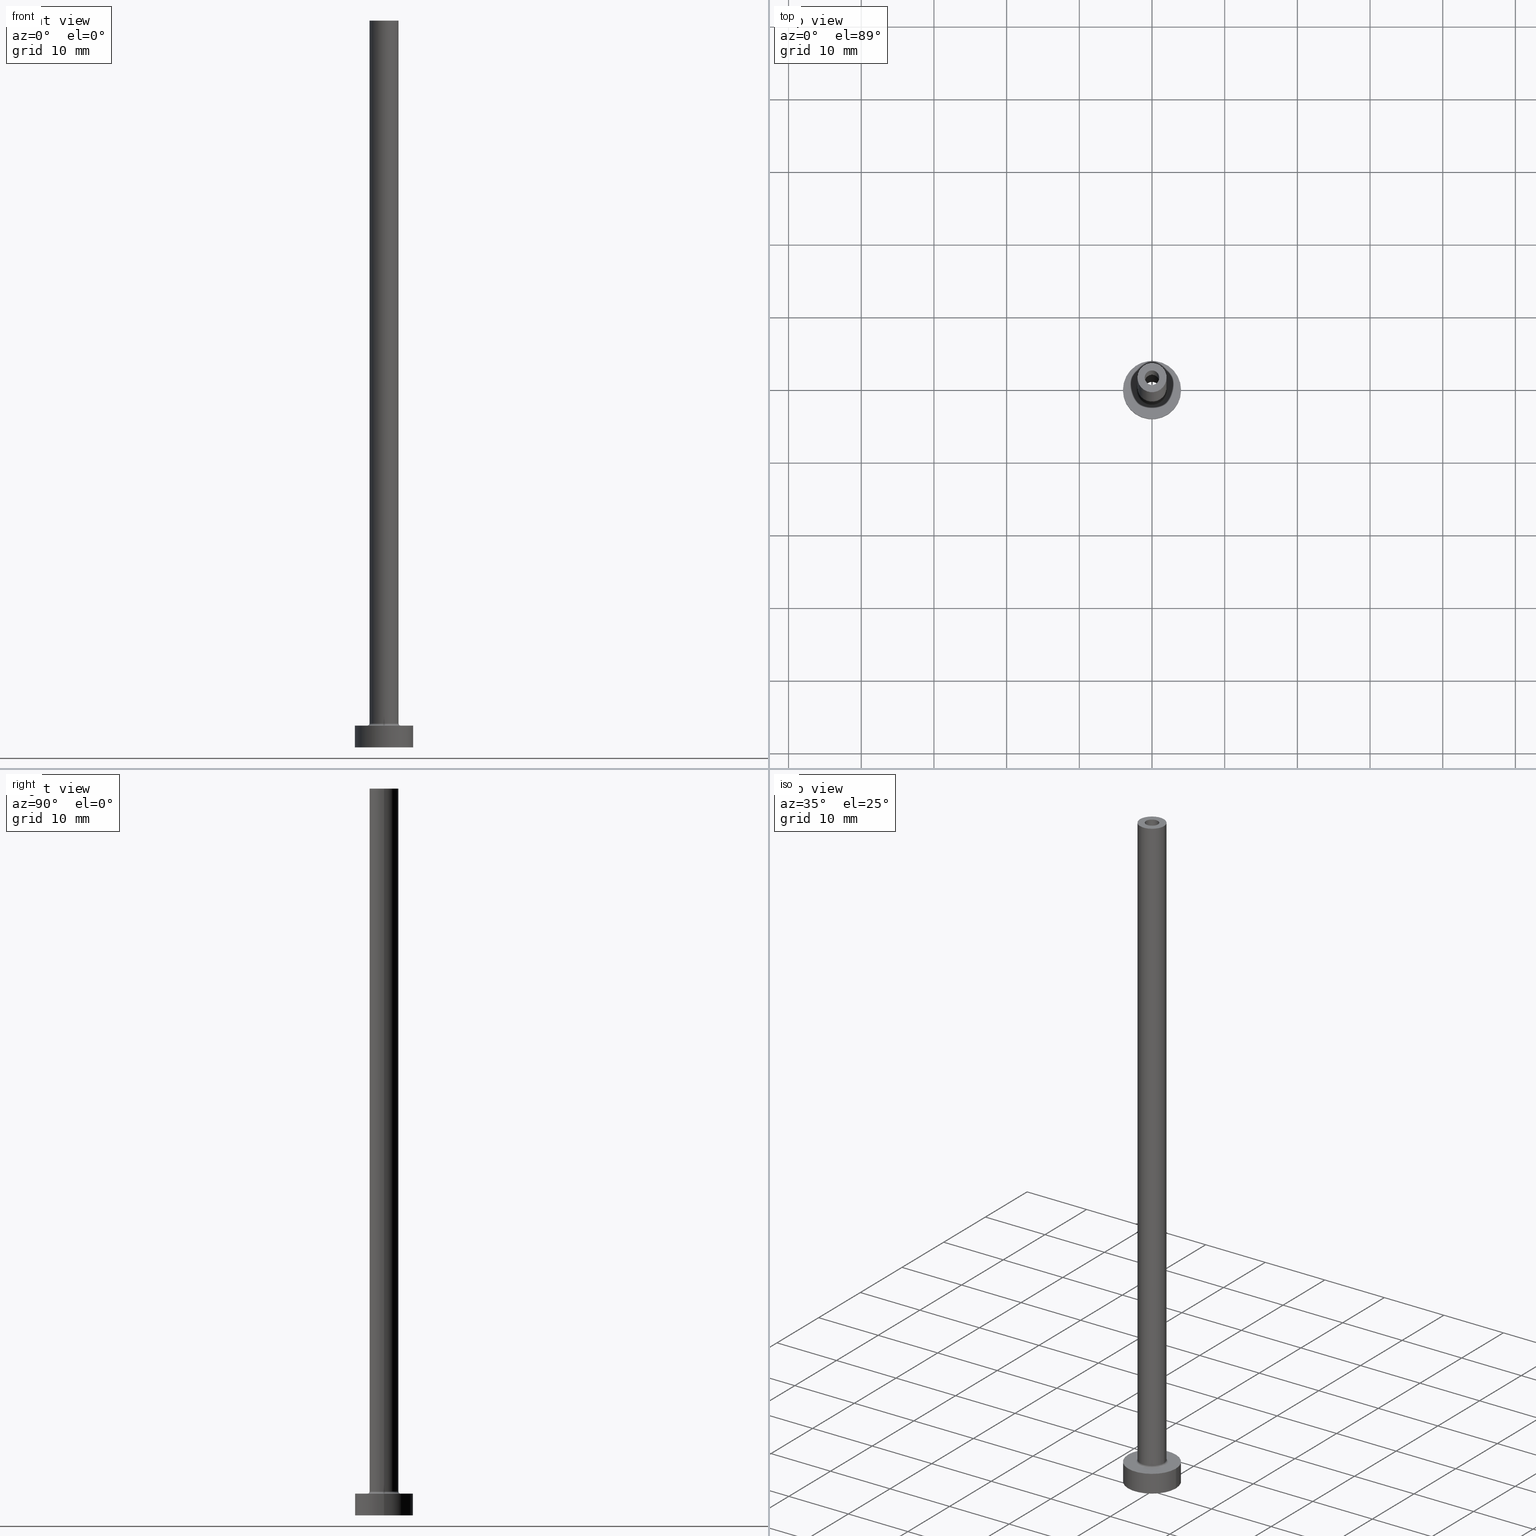
[diagram: canonical four-view strip — front | top / right | iso, engineering-drawing reading convention]
A machine part, canonical four-view strip (front | top / right | iso — engineering-drawing reading convention). The complete STEP part file that produces these views, byte-faithful:
ISO-10303-21;
HEADER;
FILE_DESCRIPTION (( 'STEP AP203' ),
    '1' );
FILE_NAME ('c3e3.STEP',
    '2023-02-13T12:51:20',
    ( '' ),
    ( '' ),
    'SwSTEP 2.0',
    'SolidWorks 2019',
    '' );
FILE_SCHEMA (( 'CONFIG_CONTROL_DESIGN' ));
ENDSEC;

DATA;
#1 = DIRECTION ( 'NONE',  ( 0.000000000000000000, 0.000000000000000000, -1.000000000000000000 ) ) ;
#2 = ORIENTED_EDGE ( 'NONE', *, *, #427, .T. ) ;
#3 = CARTESIAN_POINT ( 'NONE',  ( 0.000000000000000000, 0.000000000000000000, 3.000000000000000000 ) ) ;
#4 = DIRECTION ( 'NONE',  ( -0.000000000000000000, -0.000000000000000000, -1.000000000000000000 ) ) ;
#5 = TOROIDAL_SURFACE ( 'NONE', #358, 2.299999999999999822, 0.2999999999999999889 ) ;
#6 = CARTESIAN_POINT ( 'NONE',  ( -4.000000000000000000, 0.000000000000000000, 0.000000000000000000 ) ) ;
#7 = EDGE_CURVE ( 'NONE', #207, #121, #343, .T. ) ;
#8 = ORIENTED_EDGE ( 'NONE', *, *, #230, .T. ) ;
#9 = CARTESIAN_POINT ( 'NONE',  ( 0.000000000000000000, 0.000000000000000000, 3.299999999999997158 ) ) ;
#10 = EDGE_CURVE ( 'NONE', #211, #157, #228, .T. ) ;
#11 = CC_DESIGN_DATE_AND_TIME_ASSIGNMENT ( #301, #264, ( #240 ) ) ;
#12 = APPROVAL_PERSON_ORGANIZATION ( #194, #149, #426 ) ;
#13 = EDGE_LOOP ( 'NONE', ( #83, #331, #319, #382 ) ) ;
#14 = PRODUCT_DEFINITION_SHAPE ( 'NONE', 'NONE',  #240 ) ;
#15 = CARTESIAN_POINT ( 'NONE',  ( 1.149999999999999911, 1.408343819019456028E-16, 0.000000000000000000 ) ) ;
#16 = EDGE_LOOP ( 'NONE', ( #425, #40, #8, #134 ) ) ;
#17 = DIRECTION ( 'NONE',  ( 1.000000000000000000, 0.000000000000000000, 0.000000000000000000 ) ) ;
#18 = DIRECTION ( 'NONE',  ( 0.000000000000000000, 0.000000000000000000, 1.000000000000000000 ) ) ;
#19 = CIRCLE ( 'NONE', #291, 1.000000000000000000 ) ;
#20 = CARTESIAN_POINT ( 'NONE',  ( 0.000000000000000000, 0.000000000000000000, 3.299999999999997158 ) ) ;
#21 = DIRECTION ( 'NONE',  ( 0.000000000000000000, 0.000000000000000000, -1.000000000000000000 ) ) ;
#22 = ORIENTED_EDGE ( 'NONE', *, *, #142, .T. ) ;
#23 = AXIS2_PLACEMENT_3D ( 'NONE', #163, #18, #156 ) ;
#24 = LOCAL_TIME ( 13, 51, 20.00000000000000000, #198 ) ;
#25 = DIRECTION ( 'NONE',  ( 0.000000000000000000, 0.000000000000000000, 1.000000000000000000 ) ) ;
#26 = ORIENTED_EDGE ( 'NONE', *, *, #230, .F. ) ;
#27 = CARTESIAN_POINT ( 'NONE',  ( 0.000000000000000000, 0.000000000000000000, 100.0000000000000000 ) ) ;
#28 = DATE_AND_TIME ( #57, #144 ) ;
#29 = CARTESIAN_POINT ( 'NONE',  ( 0.000000000000000000, 0.000000000000000000, 100.0000000000000000 ) ) ;
#30 = DIRECTION ( 'NONE',  ( 0.000000000000000000, 0.000000000000000000, 1.000000000000000000 ) ) ;
#31 = DIRECTION ( 'NONE',  ( 0.000000000000000000, 0.000000000000000000, 1.000000000000000000 ) ) ;
#32 = FACE_OUTER_BOUND ( 'NONE', #130, .T. ) ;
#33 = DIRECTION ( 'NONE',  ( 1.000000000000000000, 0.000000000000000000, -0.000000000000000000 ) ) ;
#34 = DIRECTION ( 'NONE',  ( 0.000000000000000000, 0.000000000000000000, 1.000000000000000000 ) ) ;
#35 = APPLICATION_PROTOCOL_DEFINITION ( 'international standard', 'config_control_design', 1994, #278 ) ;
#36 = ADVANCED_FACE ( 'NONE', ( #260 ), #227, .F. ) ;
#37 = VERTEX_POINT ( 'NONE', #189 ) ;
#38 = VECTOR ( 'NONE', #200, 1000.000000000000000 ) ;
#39 = CC_DESIGN_APPROVAL ( #431, ( #445 ) ) ;
#40 = ORIENTED_EDGE ( 'NONE', *, *, #329, .T. ) ;
#41 = PRODUCT ( 'c3e3', 'c3e3', '', ( #389 ) ) ;
#42 = ADVANCED_FACE ( 'NONE', ( #447, #119 ), #371, .F. ) ;
#43 = APPROVAL_DATE_TIME ( #116, #431 ) ;
#44 = EDGE_LOOP ( 'NONE', ( #324, #380 ) ) ;
#45 = CIRCLE ( 'NONE', #320, 4.000000000000000000 ) ;
#46 = LOCAL_TIME ( 13, 51, 20.00000000000000000, #223 ) ;
#47 = DIRECTION ( 'NONE',  ( -0.000000000000000000, -0.000000000000000000, -1.000000000000000000 ) ) ;
#48 = EDGE_CURVE ( 'NONE', #417, #449, #312, .T. ) ;
#49 = LINE ( 'NONE', #271, #307 ) ;
#50 = DIRECTION ( 'NONE',  ( 0.000000000000000000, 0.000000000000000000, -1.000000000000000000 ) ) ;
#51 = CYLINDRICAL_SURFACE ( 'NONE', #85, 4.000000000000000000 ) ;
#52 = VERTEX_POINT ( 'NONE', #88 ) ;
#53 = CARTESIAN_POINT ( 'NONE',  ( 4.000000000000000000, 4.898587196589412829E-16, 0.000000000000000000 ) ) ;
#54 = VERTEX_POINT ( 'NONE', #53 ) ;
#55 = SECURITY_CLASSIFICATION ( '', '', #79 ) ;
#56 = CARTESIAN_POINT ( 'NONE',  ( -2.000000000000000000, 0.000000000000000000, 100.0000000000000000 ) ) ;
#57 = CALENDAR_DATE ( 2023, 13, 2 ) ;
#58 = CARTESIAN_POINT ( 'NONE',  ( 0.000000000000000000, 0.000000000000000000, 0.000000000000000000 ) ) ;
#59 = ADVANCED_FACE ( 'NONE', ( #209 ), #101, .T. ) ;
#60 = DIRECTION ( 'NONE',  ( -1.000000000000000000, 1.224646799147353207E-16, 0.000000000000000000 ) ) ;
#61 = EDGE_LOOP ( 'NONE', ( #190, #277, #239, #160 ) ) ;
#62 = DIRECTION ( 'NONE',  ( 1.000000000000000000, 0.000000000000000000, 0.000000000000000000 ) ) ;
#63 = ORIENTED_EDGE ( 'NONE', *, *, #180, .F. ) ;
#64 = APPROVAL_ROLE ( '' ) ;
#65 = LINE ( 'NONE', #354, #38 ) ;
#66 = AXIS2_PLACEMENT_3D ( 'NONE', #454, #138, #124 ) ;
#67 = VECTOR ( 'NONE', #242, 1000.000000000000000 ) ;
#68 = ADVANCED_FACE ( 'NONE', ( #254 ), #5, .F. ) ;
#69 = CYLINDRICAL_SURFACE ( 'NONE', #414, 2.000000000000000000 ) ;
#70 = ORIENTED_EDGE ( 'NONE', *, *, #446, .F. ) ;
#71 = CYLINDRICAL_SURFACE ( 'NONE', #177, 1.149999999999999911 ) ;
#72 =( LENGTH_UNIT ( ) NAMED_UNIT ( * ) SI_UNIT ( .MILLI., .METRE. ) );
#73 = DIRECTION ( 'NONE',  ( 1.224646799147353207E-16, 1.000000000000000000, -0.000000000000000000 ) ) ;
#74 = CARTESIAN_POINT ( 'NONE',  ( 0.000000000000000000, 0.000000000000000000, 0.000000000000000000 ) ) ;
#75 = CARTESIAN_POINT ( 'NONE',  ( -4.000000000000000000, 0.000000000000000000, 3.000000000000000000 ) ) ;
#76 = EDGE_CURVE ( 'NONE', #420, #448, #19, .T. ) ;
#77 = AXIS2_PLACEMENT_3D ( 'NONE', #375, #197, #350 ) ;
#78 = DIRECTION ( 'NONE',  ( 1.000000000000000000, 0.000000000000000000, 0.000000000000000000 ) ) ;
#79 = SECURITY_CLASSIFICATION_LEVEL ( 'unclassified' ) ;
#80 = CALENDAR_DATE ( 2023, 13, 2 ) ;
#81 = MANIFOLD_SOLID_BREP ( 'Odebrat vysunut�m4', #289 ) ;
#82 = EDGE_LOOP ( 'NONE', ( #22, #345 ) ) ;
#83 = ORIENTED_EDGE ( 'NONE', *, *, #314, .F. ) ;
#84 = ORIENTED_EDGE ( 'NONE', *, *, #10, .F. ) ;
#85 = AXIS2_PLACEMENT_3D ( 'NONE', #313, #206, #381 ) ;
#86 = CC_DESIGN_PERSON_AND_ORGANIZATION_ASSIGNMENT ( #327, #279, ( #55 ) ) ;
#87 = EDGE_LOOP ( 'NONE', ( #252, #332 ) ) ;
#88 = CARTESIAN_POINT ( 'NONE',  ( -4.000000000000000000, 0.000000000000000000, 3.000000000000000000 ) ) ;
#89 = ORIENTED_EDGE ( 'NONE', *, *, #118, .F. ) ;
#90 = FACE_OUTER_BOUND ( 'NONE', #317, .T. ) ;
#91 = ADVANCED_FACE ( 'NONE', ( #292, #315 ), #391, .T. ) ;
#92 = SHAPE_DEFINITION_REPRESENTATION ( #14, #201 ) ;
#93 = APPROVAL_PERSON_ORGANIZATION ( #442, #431, #441 ) ;
#94 = CARTESIAN_POINT ( 'NONE',  ( 0.000000000000000000, 0.000000000000000000, 3.000000000000000000 ) ) ;
#95 = DIRECTION ( 'NONE',  ( 1.000000000000000000, 0.000000000000000000, 0.000000000000000000 ) ) ;
#96 = CARTESIAN_POINT ( 'NONE',  ( 2.299999999999999822, 0.000000000000000000, 3.299999999999997158 ) ) ;
#97 = DIRECTION ( 'NONE',  ( 1.000000000000000000, 0.000000000000000000, 0.000000000000000000 ) ) ;
#98 = APPLICATION_PROTOCOL_DEFINITION ( 'international standard', 'config_control_design', 1994, #159 ) ;
#99 = CARTESIAN_POINT ( 'NONE',  ( 0.000000000000000000, 0.000000000000000000, 68.25269119345811930 ) ) ;
#100 = DATE_AND_TIME ( #132, #436 ) ;
#101 = CYLINDRICAL_SURFACE ( 'NONE', #434, 2.000000000000000000 ) ;
#102 = DIRECTION ( 'NONE',  ( 1.000000000000000000, 0.000000000000000000, 0.000000000000000000 ) ) ;
#103 = AXIS2_PLACEMENT_3D ( 'NONE', #365, #419, #17 ) ;
#104 = VECTOR ( 'NONE', #410, 1000.000000000000000 ) ;
#105 = DIRECTION ( 'NONE',  ( -1.000000000000000000, 0.000000000000000000, 0.000000000000000000 ) ) ;
#106 = DIRECTION ( 'NONE',  ( 0.000000000000000000, 0.000000000000000000, -1.000000000000000000 ) ) ;
#107 = ORIENTED_EDGE ( 'NONE', *, *, #344, .F. ) ;
#108 = CARTESIAN_POINT ( 'NONE',  ( 1.149999999999999911, 1.408343819019456028E-16, 68.25269119345811930 ) ) ;
#109 = CARTESIAN_POINT ( 'NONE',  ( 0.000000000000000000, 0.000000000000000000, 65.00000000000000000 ) ) ;
#110 = EDGE_CURVE ( 'NONE', #121, #207, #115, .T. ) ;
#111 = CIRCLE ( 'NONE', #367, 2.000000000000000000 ) ;
#112 = AXIS2_PLACEMENT_3D ( 'NONE', #74, #218, #265 ) ;
#113 = PERSON_AND_ORGANIZATION ( #369, #205 ) ;
#114 = AXIS2_PLACEMENT_3D ( 'NONE', #231, #122, #276 ) ;
#115 = CIRCLE ( 'NONE', #444, 2.000000000000000000 ) ;
#116 = DATE_AND_TIME ( #305, #129 ) ;
#117 = AXIS2_PLACEMENT_3D ( 'NONE', #203, #285, #280 ) ;
#118 = EDGE_CURVE ( 'NONE', #37, #370, #424, .T. ) ;
#119 = FACE_OUTER_BOUND ( 'NONE', #152, .T. ) ;
#120 = AXIS2_PLACEMENT_3D ( 'NONE', #253, #330, #397 ) ;
#121 = VERTEX_POINT ( 'NONE', #383 ) ;
#122 = DIRECTION ( 'NONE',  ( 0.000000000000000000, 0.000000000000000000, 1.000000000000000000 ) ) ;
#123 = ORIENTED_EDGE ( 'NONE', *, *, #7, .F. ) ;
#124 = DIRECTION ( 'NONE',  ( 1.000000000000000000, 0.000000000000000000, 0.000000000000000000 ) ) ;
#125 = CARTESIAN_POINT ( 'NONE',  ( 1.149999999999999911, 1.408343819019456028E-16, 65.00000000000000000 ) ) ;
#126 = DIRECTION ( 'NONE',  ( 0.000000000000000000, 0.000000000000000000, -1.000000000000000000 ) ) ;
#127 = CARTESIAN_POINT ( 'NONE',  ( 2.299999999999999822, 0.000000000000000000, 2.999999999999998668 ) ) ;
#128 = COORDINATED_UNIVERSAL_TIME_OFFSET ( 1, 0, .AHEAD. ) ;
#129 = LOCAL_TIME ( 13, 51, 20.00000000000000000, #303 ) ;
#130 = EDGE_LOOP ( 'NONE', ( #310, #155, #456, #308 ) ) ;
#131 = DIRECTION ( 'NONE',  ( -0.000000000000000000, -0.000000000000000000, -1.000000000000000000 ) ) ;
#132 = CALENDAR_DATE ( 2023, 13, 2 ) ;
#133 = EDGE_CURVE ( 'NONE', #333, #364, #282, .T. ) ;
#134 = ORIENTED_EDGE ( 'NONE', *, *, #298, .F. ) ;
#135 = DIRECTION ( 'NONE',  ( -0.000000000000000000, -0.000000000000000000, -1.000000000000000000 ) ) ;
#136 = CARTESIAN_POINT ( 'NONE',  ( 2.000000000000000000, 2.449293598294705921E-16, 3.299999999999997158 ) ) ;
#137 = AXIS2_PLACEMENT_3D ( 'NONE', #355, #31, #172 ) ;
#138 = DIRECTION ( 'NONE',  ( -0.000000000000000000, -0.000000000000000000, -1.000000000000000000 ) ) ;
#139 = DIRECTION ( 'NONE',  ( 1.000000000000000000, 0.000000000000000000, 0.000000000000000000 ) ) ;
#140 = EDGE_LOOP ( 'NONE', ( #366, #269 ) ) ;
#141 = PERSON_AND_ORGANIZATION_ROLE ( 'design_owner' ) ;
#142 = EDGE_CURVE ( 'NONE', #370, #37, #151, .T. ) ;
#143 = DATE_AND_TIME ( #146, #24 ) ;
#144 = LOCAL_TIME ( 13, 51, 20.00000000000000000, #128 ) ;
#145 = CC_DESIGN_DATE_AND_TIME_ASSIGNMENT ( #28, #161, ( #55 ) ) ;
#146 = CALENDAR_DATE ( 2023, 13, 2 ) ;
#147 = CC_DESIGN_SECURITY_CLASSIFICATION ( #55, ( #445 ) ) ;
#148 = ORIENTED_EDGE ( 'NONE', *, *, #298, .T. ) ;
#149 = APPROVAL ( #455, 'NEUR�EN�' ) ;
#150 = FACE_OUTER_BOUND ( 'NONE', #255, .T. ) ;
#151 = CIRCLE ( 'NONE', #23, 1.000000000000000000 ) ;
#152 = EDGE_LOOP ( 'NONE', ( #362, #70 ) ) ;
#153 = APPROVAL_PERSON_ORGANIZATION ( #241, #219, #64 ) ;
#154 = ADVANCED_FACE ( 'NONE', ( #150 ), #51, .T. ) ;
#155 = ORIENTED_EDGE ( 'NONE', *, *, #363, .T. ) ;
#156 = DIRECTION ( 'NONE',  ( 1.000000000000000000, 0.000000000000000000, 0.000000000000000000 ) ) ;
#157 = VERTEX_POINT ( 'NONE', #127 ) ;
#158 = LINE ( 'NONE', #458, #267 ) ;
#159 = APPLICATION_CONTEXT ( 'configuration controlled 3d designs of mechanical parts and assemblies' ) ;
#160 = ORIENTED_EDGE ( 'NONE', *, *, #427, .F. ) ;
#161 = DATE_TIME_ROLE ( 'classification_date' ) ;
#162 = DIRECTION ( 'NONE',  ( 0.000000000000000000, 0.000000000000000000, 1.000000000000000000 ) ) ;
#163 = CARTESIAN_POINT ( 'NONE',  ( 0.000000000000000000, 0.000000000000000000, 65.00000000000000000 ) ) ;
#164 = CIRCLE ( 'NONE', #112, 4.000000000000000000 ) ;
#165 = DIRECTION ( 'NONE',  ( -1.000000000000000000, 0.000000000000000000, 0.000000000000000000 ) ) ;
#166 = FACE_OUTER_BOUND ( 'NONE', #13, .T. ) ;
#167 = APPROVAL_DATE_TIME ( #100, #149 ) ;
#168 = CARTESIAN_POINT ( 'NONE',  ( -2.299999999999999822, 2.816687638038912056E-16, 3.299999999999997158 ) ) ;
#169 = DIRECTION ( 'NONE',  ( 0.000000000000000000, 0.000000000000000000, 1.000000000000000000 ) ) ;
#170 = EDGE_LOOP ( 'NONE', ( #263, #123, #148, #334 ) ) ;
#171 = DIRECTION ( 'NONE',  ( -1.000000000000000000, 0.000000000000000000, 0.000000000000000000 ) ) ;
#172 = DIRECTION ( 'NONE',  ( 1.000000000000000000, 0.000000000000000000, 0.000000000000000000 ) ) ;
#173 = ORIENTED_EDGE ( 'NONE', *, *, #110, .T. ) ;
#174 = DIRECTION ( 'NONE',  ( -1.000000000000000000, 0.000000000000000000, 0.000000000000000000 ) ) ;
#175 = DIRECTION ( 'NONE',  ( 1.000000000000000000, 0.000000000000000000, 0.000000000000000000 ) ) ;
#176 = EDGE_CURVE ( 'NONE', #364, #333, #401, .T. ) ;
#177 = AXIS2_PLACEMENT_3D ( 'NONE', #208, #106, #174 ) ;
#178 = DIRECTION ( 'NONE',  ( 0.000000000000000000, 0.000000000000000000, 1.000000000000000000 ) ) ;
#179 = APPROVAL_DATE_TIME ( #143, #219 ) ;
#180 = EDGE_CURVE ( 'NONE', #157, #211, #185, .T. ) ;
#181 = AXIS2_PLACEMENT_3D ( 'NONE', #286, #429, #97 ) ;
#182 = CIRCLE ( 'NONE', #402, 1.000000000000000000 ) ;
#183 = PERSON_AND_ORGANIZATION_ROLE ( 'creator' ) ;
#184 = PERSON_AND_ORGANIZATION ( #369, #205 ) ;
#185 = CIRCLE ( 'NONE', #66, 2.299999999999999822 ) ;
#186 = AXIS2_PLACEMENT_3D ( 'NONE', #261, #300, #443 ) ;
#187 = VERTEX_POINT ( 'NONE', #346 ) ;
#188 = ORIENTED_EDGE ( 'NONE', *, *, #306, .F. ) ;
#189 = CARTESIAN_POINT ( 'NONE',  ( 1.000000000000000000, 1.224646799147353207E-16, 65.00000000000000000 ) ) ;
#190 = ORIENTED_EDGE ( 'NONE', *, *, #384, .T. ) ;
#191 = EDGE_LOOP ( 'NONE', ( #387, #316 ) ) ;
#192 = CARTESIAN_POINT ( 'NONE',  ( -1.149999999999999911, 0.000000000000000000, 0.000000000000000000 ) ) ;
#193 = CYLINDRICAL_SURFACE ( 'NONE', #258, 1.149999999999999911 ) ;
#194 = PERSON_AND_ORGANIZATION ( #369, #205 ) ;
#195 = ADVANCED_FACE ( 'NONE', ( #234 ), #461, .F. ) ;
#196 = CARTESIAN_POINT ( 'NONE',  ( 0.000000000000000000, 0.000000000000000000, 100.0000000000000000 ) ) ;
#197 = DIRECTION ( 'NONE',  ( -0.000000000000000000, -0.000000000000000000, -1.000000000000000000 ) ) ;
#198 = COORDINATED_UNIVERSAL_TIME_OFFSET ( 1, 0, .AHEAD. ) ;
#199 = ORIENTED_EDGE ( 'NONE', *, *, #48, .T. ) ;
#200 = DIRECTION ( 'NONE',  ( 0.000000000000000000, 0.000000000000000000, -1.000000000000000000 ) ) ;
#201 = ADVANCED_BREP_SHAPE_REPRESENTATION ( 'c3e3', ( #81, #120 ), #415 ) ;
#202 = ORIENTED_EDGE ( 'NONE', *, *, #309, .F. ) ;
#203 = CARTESIAN_POINT ( 'NONE',  ( 0.000000000000000000, 0.000000000000000000, 65.00000000000000000 ) ) ;
#204 = CIRCLE ( 'NONE', #273, 2.000000000000000000 ) ;
#205 = ORGANIZATION ( 'NEUR�EN�', 'NEUR�EN�', '' ) ;
#206 = DIRECTION ( 'NONE',  ( -0.000000000000000000, -0.000000000000000000, -1.000000000000000000 ) ) ;
#207 = VERTEX_POINT ( 'NONE', #56 ) ;
#208 = CARTESIAN_POINT ( 'NONE',  ( 0.000000000000000000, 0.000000000000000000, 68.25269119345811930 ) ) ;
#209 = FACE_OUTER_BOUND ( 'NONE', #16, .T. ) ;
#210 = DIRECTION ( 'NONE',  ( 0.000000000000000000, -1.000000000000000000, 0.000000000000000000 ) ) ;
#211 = VERTEX_POINT ( 'NONE', #437 ) ;
#212 = FACE_OUTER_BOUND ( 'NONE', #421, .T. ) ;
#213 = UNCERTAINTY_MEASURE_WITH_UNIT (LENGTH_MEASURE( 1.000000000000000082E-05 ), #72, 'distance_accuracy_value', 'NONE');
#214 = AXIS2_PLACEMENT_3D ( 'NONE', #168, #73, #60 ) ;
#215 = ORIENTED_EDGE ( 'NONE', *, *, #7, .T. ) ;
#216 = PERSON_AND_ORGANIZATION ( #369, #205 ) ;
#217 = ADVANCED_FACE ( 'NONE', ( #90 ), #193, .F. ) ;
#218 = DIRECTION ( 'NONE',  ( 0.000000000000000000, 0.000000000000000000, 1.000000000000000000 ) ) ;
#219 = APPROVAL ( #385, 'NEUR�EN�' ) ;
#220 = LINE ( 'NONE', #360, #104 ) ;
#221 = AXIS2_PLACEMENT_3D ( 'NONE', #432, #293, #423 ) ;
#222 = VECTOR ( 'NONE', #396, 1000.000000000000000 ) ;
#223 = COORDINATED_UNIVERSAL_TIME_OFFSET ( 1, 0, .AHEAD. ) ;
#224 = CARTESIAN_POINT ( 'NONE',  ( 1.000000000000000000, 1.224646799147353207E-16, 100.0000000000000000 ) ) ;
#225 = EDGE_CURVE ( 'NONE', #52, #237, #45, .T. ) ;
#226 = ORIENTED_EDGE ( 'NONE', *, *, #363, .F. ) ;
#227 = CYLINDRICAL_SURFACE ( 'NONE', #372, 1.000000000000000000 ) ;
#228 = CIRCLE ( 'NONE', #406, 2.299999999999999822 ) ;
#229 = VECTOR ( 'NONE', #47, 1000.000000000000000 ) ;
#230 = EDGE_CURVE ( 'NONE', #376, #187, #111, .T. ) ;
#231 = CARTESIAN_POINT ( 'NONE',  ( 0.000000000000000000, 0.000000000000000000, 0.000000000000000000 ) ) ;
#232 = CARTESIAN_POINT ( 'NONE',  ( 0.000000000000000000, 0.000000000000000000, 100.0000000000000000 ) ) ;
#233 = CC_DESIGN_PERSON_AND_ORGANIZATION_ASSIGNMENT ( #216, #183, ( #240 ) ) ;
#234 = FACE_OUTER_BOUND ( 'NONE', #422, .T. ) ;
#235 = DIRECTION ( 'NONE',  ( 0.000000000000000000, 0.000000000000000000, 1.000000000000000000 ) ) ;
#236 = CARTESIAN_POINT ( 'NONE',  ( -1.149999999999999911, 0.000000000000000000, 65.00000000000000000 ) ) ;
#237 = VERTEX_POINT ( 'NONE', #392 ) ;
#238 = DIRECTION ( 'NONE',  ( 1.000000000000000000, 0.000000000000000000, 0.000000000000000000 ) ) ;
#239 = ORIENTED_EDGE ( 'NONE', *, *, #142, .F. ) ;
#240 = PRODUCT_DEFINITION ( 'NEZN�M�', '', #445, #251 ) ;
#241 = PERSON_AND_ORGANIZATION ( #369, #205 ) ;
#242 = DIRECTION ( 'NONE',  ( 0.000000000000000000, 0.000000000000000000, -1.000000000000000000 ) ) ;
#243 = CARTESIAN_POINT ( 'NONE',  ( 0.000000000000000000, 0.000000000000000000, 100.0000000000000000 ) ) ;
#244 = DIRECTION ( 'NONE',  ( 0.000000000000000000, 0.000000000000000000, 1.000000000000000000 ) ) ;
#245 = ORIENTED_EDGE ( 'NONE', *, *, #290, .F. ) ;
#246 = DIRECTION ( 'NONE',  ( 1.000000000000000000, 0.000000000000000000, 0.000000000000000000 ) ) ;
#247 = CARTESIAN_POINT ( 'NONE',  ( 0.000000000000000000, 0.000000000000000000, 3.299999999999997158 ) ) ;
#248 = CARTESIAN_POINT ( 'NONE',  ( 0.000000000000000000, 0.000000000000000000, 100.0000000000000000 ) ) ;
#249 = CC_DESIGN_APPROVAL ( #219, ( #240 ) ) ;
#250 = ADVANCED_FACE ( 'NONE', ( #348 ), #69, .T. ) ;
#251 = DESIGN_CONTEXT ( 'detailed design', #159, 'design' ) ;
#252 = ORIENTED_EDGE ( 'NONE', *, *, #180, .T. ) ;
#253 = CARTESIAN_POINT ( 'NONE',  ( 0.000000000000000000, 0.000000000000000000, 0.000000000000000000 ) ) ;
#254 = FACE_OUTER_BOUND ( 'NONE', #373, .T. ) ;
#255 = EDGE_LOOP ( 'NONE', ( #107, #430, #418, #440 ) ) ;
#256 = DIRECTION ( 'NONE',  ( 0.000000000000000000, 0.000000000000000000, 1.000000000000000000 ) ) ;
#257 = LINE ( 'NONE', #108, #67 ) ;
#258 = AXIS2_PLACEMENT_3D ( 'NONE', #99, #21, #283 ) ;
#259 = AXIS2_PLACEMENT_3D ( 'NONE', #109, #256, #400 ) ;
#260 = FACE_OUTER_BOUND ( 'NONE', #61, .T. ) ;
#261 = CARTESIAN_POINT ( 'NONE',  ( 0.000000000000000000, 0.000000000000000000, 3.000000000000000000 ) ) ;
#262 = PERSON_AND_ORGANIZATION_ROLE ( 'design_supplier' ) ;
#263 = ORIENTED_EDGE ( 'NONE', *, *, #329, .F. ) ;
#264 = DATE_TIME_ROLE ( 'creation_date' ) ;
#265 = DIRECTION ( 'NONE',  ( 1.000000000000000000, 0.000000000000000000, 0.000000000000000000 ) ) ;
#266 = AXIS2_PLACEMENT_3D ( 'NONE', #435, #395, #281 ) ;
#267 = VECTOR ( 'NONE', #405, 1000.000000000000000 ) ;
#268 = EDGE_CURVE ( 'NONE', #420, #37, #65, .T. ) ;
#269 = ORIENTED_EDGE ( 'NONE', *, *, #48, .F. ) ;
#270 = DIRECTION ( 'NONE',  ( 0.000000000000000000, 0.000000000000000000, -1.000000000000000000 ) ) ;
#271 = CARTESIAN_POINT ( 'NONE',  ( -1.000000000000000000, 0.000000000000000000, 100.0000000000000000 ) ) ;
#272 = ADVANCED_FACE ( 'NONE', ( #166 ), #326, .T. ) ;
#273 = AXIS2_PLACEMENT_3D ( 'NONE', #336, #235, #78 ) ;
#274 = AXIS2_PLACEMENT_3D ( 'NONE', #9, #34, #175 ) ;
#275 = EDGE_LOOP ( 'NONE', ( #328, #359 ) ) ;
#276 = DIRECTION ( 'NONE',  ( 1.000000000000000000, 0.000000000000000000, -0.000000000000000000 ) ) ;
#277 = ORIENTED_EDGE ( 'NONE', *, *, #268, .T. ) ;
#278 = APPLICATION_CONTEXT ( 'configuration controlled 3d designs of mechanical parts and assemblies' ) ;
#279 = PERSON_AND_ORGANIZATION_ROLE ( 'classification_officer' ) ;
#280 = DIRECTION ( 'NONE',  ( 1.000000000000000000, 0.000000000000000000, 0.000000000000000000 ) ) ;
#281 = DIRECTION ( 'NONE',  ( 1.000000000000000000, 0.000000000000000000, -0.000000000000000000 ) ) ;
#282 = CIRCLE ( 'NONE', #77, 1.149999999999999911 ) ;
#283 = DIRECTION ( 'NONE',  ( -1.000000000000000000, 0.000000000000000000, 0.000000000000000000 ) ) ;
#284 = CIRCLE ( 'NONE', #214, 0.2999999999999999334 ) ;
#285 = DIRECTION ( 'NONE',  ( 0.000000000000000000, 0.000000000000000000, 1.000000000000000000 ) ) ;
#286 = CARTESIAN_POINT ( 'NONE',  ( 0.000000000000000000, 0.000000000000000000, 65.00000000000000000 ) ) ;
#287 = PERSON_AND_ORGANIZATION ( #369, #205 ) ;
#288 = FACE_OUTER_BOUND ( 'NONE', #403, .T. ) ;
#289 = CLOSED_SHELL ( 'NONE', ( #36, #412, #68, #59, #154, #272, #91, #42, #250, #399, #338, #217, #439, #195 ) ) ;
#290 = EDGE_CURVE ( 'NONE', #187, #376, #204, .T. ) ;
#291 = AXIS2_PLACEMENT_3D ( 'NONE', #29, #169, #139 ) ;
#292 = FACE_BOUND ( 'NONE', #87, .T. ) ;
#293 = DIRECTION ( 'NONE',  ( 0.000000000000000000, 0.000000000000000000, -1.000000000000000000 ) ) ;
#294 = AXIS2_PLACEMENT_3D ( 'NONE', #3, #135, #105 ) ;
#295 = AXIS2_PLACEMENT_3D ( 'NONE', #248, #162, #33 ) ;
#296 = LINE ( 'NONE', #438, #222 ) ;
#297 = LINE ( 'NONE', #459, #451 ) ;
#298 = EDGE_CURVE ( 'NONE', #207, #187, #296, .T. ) ;
#299 = DIRECTION ( 'NONE',  ( 1.000000000000000000, 0.000000000000000000, 0.000000000000000000 ) ) ;
#300 = DIRECTION ( 'NONE',  ( 0.000000000000000000, 0.000000000000000000, 1.000000000000000000 ) ) ;
#301 = DATE_AND_TIME ( #80, #46 ) ;
#302 = CC_DESIGN_APPROVAL ( #149, ( #55 ) ) ;
#303 = COORDINATED_UNIVERSAL_TIME_OFFSET ( 1, 0, .AHEAD. ) ;
#304 = FACE_OUTER_BOUND ( 'NONE', #140, .T. ) ;
#305 = CALENDAR_DATE ( 2023, 13, 2 ) ;
#306 = EDGE_CURVE ( 'NONE', #187, #211, #284, .T. ) ;
#307 = VECTOR ( 'NONE', #270, 1000.000000000000000 ) ;
#308 = ORIENTED_EDGE ( 'NONE', *, *, #450, .F. ) ;
#309 = EDGE_CURVE ( 'NONE', #376, #157, #460, .T. ) ;
#310 = ORIENTED_EDGE ( 'NONE', *, *, #374, .T. ) ;
#311 = CC_DESIGN_PERSON_AND_ORGANIZATION_ASSIGNMENT ( #113, #262, ( #445 ) ) ;
#312 = CIRCLE ( 'NONE', #103, 1.149999999999999911 ) ;
#313 = CARTESIAN_POINT ( 'NONE',  ( 0.000000000000000000, 0.000000000000000000, 3.000000000000000000 ) ) ;
#314 = EDGE_CURVE ( 'NONE', #237, #54, #158, .T. ) ;
#315 = FACE_OUTER_BOUND ( 'NONE', #191, .T. ) ;
#316 = ORIENTED_EDGE ( 'NONE', *, *, #344, .T. ) ;
#317 = EDGE_LOOP ( 'NONE', ( #226, #199, #398, #453 ) ) ;
#318 = DIRECTION ( 'NONE',  ( 1.000000000000000000, 0.000000000000000000, 0.000000000000000000 ) ) ;
#319 = ORIENTED_EDGE ( 'NONE', *, *, #342, .T. ) ;
#320 = AXIS2_PLACEMENT_3D ( 'NONE', #94, #244, #238 ) ;
#321 = CARTESIAN_POINT ( 'NONE',  ( 0.000000000000000000, 0.000000000000000000, 0.000000000000000000 ) ) ;
#322 = PRODUCT_RELATED_PRODUCT_CATEGORY ( 'detail', '', ( #41 ) ) ;
#323 = CIRCLE ( 'NONE', #186, 4.000000000000000000 ) ;
#324 = ORIENTED_EDGE ( 'NONE', *, *, #176, .F. ) ;
#325 = ORIENTED_EDGE ( 'NONE', *, *, #306, .T. ) ;
#326 = CYLINDRICAL_SURFACE ( 'NONE', #294, 4.000000000000000000 ) ;
#327 = PERSON_AND_ORGANIZATION ( #369, #205 ) ;
#328 = ORIENTED_EDGE ( 'NONE', *, *, #384, .F. ) ;
#329 = EDGE_CURVE ( 'NONE', #121, #376, #220, .T. ) ;
#330 = DIRECTION ( 'NONE',  ( 0.000000000000000000, 0.000000000000000000, 1.000000000000000000 ) ) ;
#331 = ORIENTED_EDGE ( 'NONE', *, *, #225, .F. ) ;
#332 = ORIENTED_EDGE ( 'NONE', *, *, #10, .T. ) ;
#333 = VERTEX_POINT ( 'NONE', #15 ) ;
#334 = ORIENTED_EDGE ( 'NONE', *, *, #290, .T. ) ;
#335 = LINE ( 'NONE', #75, #229 ) ;
#336 = CARTESIAN_POINT ( 'NONE',  ( 0.000000000000000000, 0.000000000000000000, 3.299999999999997158 ) ) ;
#337 = AXIS2_PLACEMENT_3D ( 'NONE', #96, #210, #126 ) ;
#338 = ADVANCED_FACE ( 'NONE', ( #212 ), #368, .F. ) ;
#339 = PERSON_AND_ORGANIZATION_ROLE ( 'creator' ) ;
#340 = FACE_BOUND ( 'NONE', #82, .T. ) ;
#341 = AXIS2_PLACEMENT_3D ( 'NONE', #321, #4, #102 ) ;
#342 = EDGE_CURVE ( 'NONE', #52, #393, #335, .T. ) ;
#343 = CIRCLE ( 'NONE', #137, 2.000000000000000000 ) ;
#344 = EDGE_CURVE ( 'NONE', #237, #52, #323, .T. ) ;
#345 = ORIENTED_EDGE ( 'NONE', *, *, #118, .T. ) ;
#346 = CARTESIAN_POINT ( 'NONE',  ( -2.000000000000000000, 0.000000000000000000, 3.299999999999997158 ) ) ;
#347 = DIRECTION ( 'NONE',  ( 0.000000000000000000, 0.000000000000000000, 1.000000000000000000 ) ) ;
#348 = FACE_OUTER_BOUND ( 'NONE', #170, .T. ) ;
#349 = FACE_BOUND ( 'NONE', #275, .T. ) ;
#350 = DIRECTION ( 'NONE',  ( 1.000000000000000000, 0.000000000000000000, 0.000000000000000000 ) ) ;
#351 = EDGE_CURVE ( 'NONE', #393, #54, #352, .T. ) ;
#352 = CIRCLE ( 'NONE', #361, 4.000000000000000000 ) ;
#353 =( NAMED_UNIT ( * ) PLANE_ANGLE_UNIT ( ) SI_UNIT ( $, .RADIAN. ) );
#354 = CARTESIAN_POINT ( 'NONE',  ( 1.000000000000000000, 1.224646799147353207E-16, 100.0000000000000000 ) ) ;
#355 = CARTESIAN_POINT ( 'NONE',  ( 0.000000000000000000, 0.000000000000000000, 100.0000000000000000 ) ) ;
#356 = CC_DESIGN_PERSON_AND_ORGANIZATION_ASSIGNMENT ( #184, #339, ( #445 ) ) ;
#357 = CARTESIAN_POINT ( 'NONE',  ( 0.000000000000000000, 0.000000000000000000, 100.0000000000000000 ) ) ;
#358 = AXIS2_PLACEMENT_3D ( 'NONE', #20, #25, #246 ) ;
#359 = ORIENTED_EDGE ( 'NONE', *, *, #76, .F. ) ;
#360 = CARTESIAN_POINT ( 'NONE',  ( 2.000000000000000000, 2.449293598294705921E-16, 100.0000000000000000 ) ) ;
#361 = AXIS2_PLACEMENT_3D ( 'NONE', #58, #178, #390 ) ;
#362 = ORIENTED_EDGE ( 'NONE', *, *, #351, .F. ) ;
#363 = EDGE_CURVE ( 'NONE', #417, #333, #257, .T. ) ;
#364 = VERTEX_POINT ( 'NONE', #192 ) ;
#365 = CARTESIAN_POINT ( 'NONE',  ( 0.000000000000000000, 0.000000000000000000, 65.00000000000000000 ) ) ;
#366 = ORIENTED_EDGE ( 'NONE', *, *, #374, .F. ) ;
#367 = AXIS2_PLACEMENT_3D ( 'NONE', #247, #30, #62 ) ;
#368 = TOROIDAL_SURFACE ( 'NONE', #274, 2.299999999999999822, 0.2999999999999999889 ) ;
#369 = PERSON ( 'NEUR�EN�', 'NEUR�EN�', 'NEUR�EN�', ('NEUR�EN�'), ('NEUR�EN�'), ('NEUR�EN�') ) ;
#370 = VERTEX_POINT ( 'NONE', #413 ) ;
#371 = PLANE ( 'NONE',  #114 ) ;
#372 = AXIS2_PLACEMENT_3D ( 'NONE', #232, #50, #452 ) ;
#373 = EDGE_LOOP ( 'NONE', ( #245, #325, #63, #202 ) ) ;
#374 = EDGE_CURVE ( 'NONE', #449, #417, #377, .T. ) ;
#375 = CARTESIAN_POINT ( 'NONE',  ( 0.000000000000000000, 0.000000000000000000, 0.000000000000000000 ) ) ;
#376 = VERTEX_POINT ( 'NONE', #136 ) ;
#377 = CIRCLE ( 'NONE', #117, 1.149999999999999911 ) ;
#378 = ORIENTED_EDGE ( 'NONE', *, *, #309, .T. ) ;
#379 = COORDINATED_UNIVERSAL_TIME_OFFSET ( 1, 0, .AHEAD. ) ;
#380 = ORIENTED_EDGE ( 'NONE', *, *, #133, .F. ) ;
#381 = DIRECTION ( 'NONE',  ( -1.000000000000000000, 0.000000000000000000, 0.000000000000000000 ) ) ;
#382 = ORIENTED_EDGE ( 'NONE', *, *, #351, .T. ) ;
#383 = CARTESIAN_POINT ( 'NONE',  ( 2.000000000000000000, 2.449293598294705921E-16, 100.0000000000000000 ) ) ;
#384 = EDGE_CURVE ( 'NONE', #448, #420, #182, .T. ) ;
#385 = APPROVAL_STATUS ( 'not_yet_approved' ) ;
#386 = DIRECTION ( 'NONE',  ( -0.000000000000000000, -0.000000000000000000, -1.000000000000000000 ) ) ;
#387 = ORIENTED_EDGE ( 'NONE', *, *, #225, .T. ) ;
#388 = ORIENTED_EDGE ( 'NONE', *, *, #76, .T. ) ;
#389 = MECHANICAL_CONTEXT ( 'NONE', #278, 'mechanical' ) ;
#390 = DIRECTION ( 'NONE',  ( 1.000000000000000000, 0.000000000000000000, 0.000000000000000000 ) ) ;
#391 = PLANE ( 'NONE',  #266 ) ;
#392 = CARTESIAN_POINT ( 'NONE',  ( 4.000000000000000000, 4.898587196589412829E-16, 3.000000000000000000 ) ) ;
#393 = VERTEX_POINT ( 'NONE', #6 ) ;
#394 =( NAMED_UNIT ( * ) SI_UNIT ( $, .STERADIAN. ) SOLID_ANGLE_UNIT ( ) );
#395 = DIRECTION ( 'NONE',  ( 0.000000000000000000, 0.000000000000000000, 1.000000000000000000 ) ) ;
#396 = DIRECTION ( 'NONE',  ( -0.000000000000000000, -0.000000000000000000, -1.000000000000000000 ) ) ;
#397 = DIRECTION ( 'NONE',  ( 1.000000000000000000, 0.000000000000000000, 0.000000000000000000 ) ) ;
#398 = ORIENTED_EDGE ( 'NONE', *, *, #450, .T. ) ;
#399 = ADVANCED_FACE ( 'NONE', ( #349, #288 ), #433, .T. ) ;
#400 = DIRECTION ( 'NONE',  ( 1.000000000000000000, 0.000000000000000000, -0.000000000000000000 ) ) ;
#401 = CIRCLE ( 'NONE', #341, 1.149999999999999911 ) ;
#402 = AXIS2_PLACEMENT_3D ( 'NONE', #357, #428, #95 ) ;
#403 = EDGE_LOOP ( 'NONE', ( #215, #173 ) ) ;
#404 = CARTESIAN_POINT ( 'NONE',  ( 0.000000000000000000, 0.000000000000000000, 3.000000000000000000 ) ) ;
#405 = DIRECTION ( 'NONE',  ( -0.000000000000000000, -0.000000000000000000, -1.000000000000000000 ) ) ;
#406 = AXIS2_PLACEMENT_3D ( 'NONE', #404, #409, #299 ) ;
#407 = APPROVAL_STATUS ( 'not_yet_approved' ) ;
#408 = CC_DESIGN_PERSON_AND_ORGANIZATION_ASSIGNMENT ( #287, #141, ( #41 ) ) ;
#409 = DIRECTION ( 'NONE',  ( -0.000000000000000000, -0.000000000000000000, -1.000000000000000000 ) ) ;
#410 = DIRECTION ( 'NONE',  ( -0.000000000000000000, -0.000000000000000000, -1.000000000000000000 ) ) ;
#411 = PLANE ( 'NONE',  #259 ) ;
#412 = ADVANCED_FACE ( 'NONE', ( #32 ), #71, .F. ) ;
#413 = CARTESIAN_POINT ( 'NONE',  ( -1.000000000000000000, 0.000000000000000000, 65.00000000000000000 ) ) ;
#414 = AXIS2_PLACEMENT_3D ( 'NONE', #27, #131, #171 ) ;
#415 =( GEOMETRIC_REPRESENTATION_CONTEXT ( 3 ) GLOBAL_UNCERTAINTY_ASSIGNED_CONTEXT ( ( #213 ) ) GLOBAL_UNIT_ASSIGNED_CONTEXT ( ( #72, #353, #394 ) ) REPRESENTATION_CONTEXT ( 'NONE', 'WORKASPACE' ) );
#416 = CARTESIAN_POINT ( 'NONE',  ( -1.000000000000000000, 0.000000000000000000, 100.0000000000000000 ) ) ;
#417 = VERTEX_POINT ( 'NONE', #125 ) ;
#418 = ORIENTED_EDGE ( 'NONE', *, *, #446, .T. ) ;
#419 = DIRECTION ( 'NONE',  ( 0.000000000000000000, 0.000000000000000000, 1.000000000000000000 ) ) ;
#420 = VERTEX_POINT ( 'NONE', #224 ) ;
#421 = EDGE_LOOP ( 'NONE', ( #188, #26, #378, #84 ) ) ;
#422 = EDGE_LOOP ( 'NONE', ( #457, #388, #2, #89 ) ) ;
#423 = DIRECTION ( 'NONE',  ( -1.000000000000000000, 0.000000000000000000, 0.000000000000000000 ) ) ;
#424 = CIRCLE ( 'NONE', #181, 1.000000000000000000 ) ;
#425 = ORIENTED_EDGE ( 'NONE', *, *, #110, .F. ) ;
#426 = APPROVAL_ROLE ( '' ) ;
#427 = EDGE_CURVE ( 'NONE', #448, #370, #49, .T. ) ;
#428 = DIRECTION ( 'NONE',  ( 0.000000000000000000, 0.000000000000000000, 1.000000000000000000 ) ) ;
#429 = DIRECTION ( 'NONE',  ( 0.000000000000000000, 0.000000000000000000, 1.000000000000000000 ) ) ;
#430 = ORIENTED_EDGE ( 'NONE', *, *, #314, .T. ) ;
#431 = APPROVAL ( #407, 'NEUR�EN�' ) ;
#432 = CARTESIAN_POINT ( 'NONE',  ( 0.000000000000000000, 0.000000000000000000, 100.0000000000000000 ) ) ;
#433 = PLANE ( 'NONE',  #295 ) ;
#434 = AXIS2_PLACEMENT_3D ( 'NONE', #243, #386, #165 ) ;
#435 = CARTESIAN_POINT ( 'NONE',  ( 0.000000000000000000, 0.000000000000000000, 3.000000000000000000 ) ) ;
#436 = LOCAL_TIME ( 13, 51, 20.00000000000000000, #379 ) ;
#437 = CARTESIAN_POINT ( 'NONE',  ( -2.299999999999999822, 2.816687638038912056E-16, 2.999999999999998668 ) ) ;
#438 = CARTESIAN_POINT ( 'NONE',  ( -2.000000000000000000, 0.000000000000000000, 100.0000000000000000 ) ) ;
#439 = ADVANCED_FACE ( 'NONE', ( #340, #304 ), #411, .F. ) ;
#440 = ORIENTED_EDGE ( 'NONE', *, *, #342, .F. ) ;
#441 = APPROVAL_ROLE ( '' ) ;
#442 = PERSON_AND_ORGANIZATION ( #369, #205 ) ;
#443 = DIRECTION ( 'NONE',  ( 1.000000000000000000, 0.000000000000000000, 0.000000000000000000 ) ) ;
#444 = AXIS2_PLACEMENT_3D ( 'NONE', #196, #347, #318 ) ;
#445 = PRODUCT_DEFINITION_FORMATION_WITH_SPECIFIED_SOURCE ( 'LIBOVOLN�', '', #41, .NOT_KNOWN. ) ;
#446 = EDGE_CURVE ( 'NONE', #54, #393, #164, .T. ) ;
#447 = FACE_BOUND ( 'NONE', #44, .T. ) ;
#448 = VERTEX_POINT ( 'NONE', #416 ) ;
#449 = VERTEX_POINT ( 'NONE', #236 ) ;
#450 = EDGE_CURVE ( 'NONE', #449, #364, #297, .T. ) ;
#451 = VECTOR ( 'NONE', #1, 1000.000000000000000 ) ;
#452 = DIRECTION ( 'NONE',  ( -1.000000000000000000, 0.000000000000000000, 0.000000000000000000 ) ) ;
#453 = ORIENTED_EDGE ( 'NONE', *, *, #176, .T. ) ;
#454 = CARTESIAN_POINT ( 'NONE',  ( 0.000000000000000000, 0.000000000000000000, 3.000000000000000000 ) ) ;
#455 = APPROVAL_STATUS ( 'not_yet_approved' ) ;
#456 = ORIENTED_EDGE ( 'NONE', *, *, #133, .T. ) ;
#457 = ORIENTED_EDGE ( 'NONE', *, *, #268, .F. ) ;
#458 = CARTESIAN_POINT ( 'NONE',  ( 4.000000000000000000, 4.898587196589412829E-16, 3.000000000000000000 ) ) ;
#459 = CARTESIAN_POINT ( 'NONE',  ( -1.149999999999999911, 0.000000000000000000, 68.25269119345811930 ) ) ;
#460 = CIRCLE ( 'NONE', #337, 0.2999999999999999334 ) ;
#461 = CYLINDRICAL_SURFACE ( 'NONE', #221, 1.000000000000000000 ) ;
ENDSEC;
END-ISO-10303-21;
